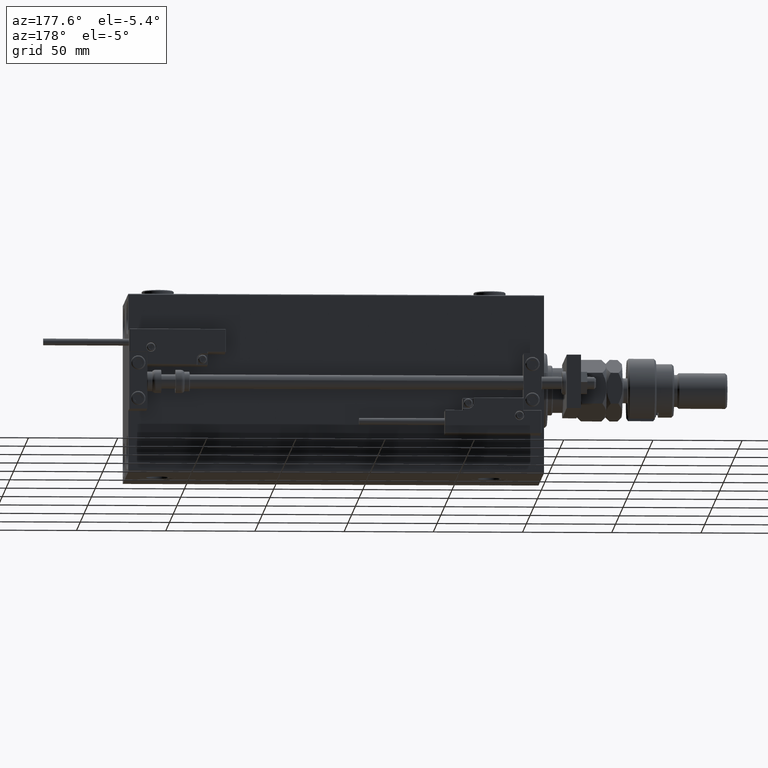
[diagram: clean part render]
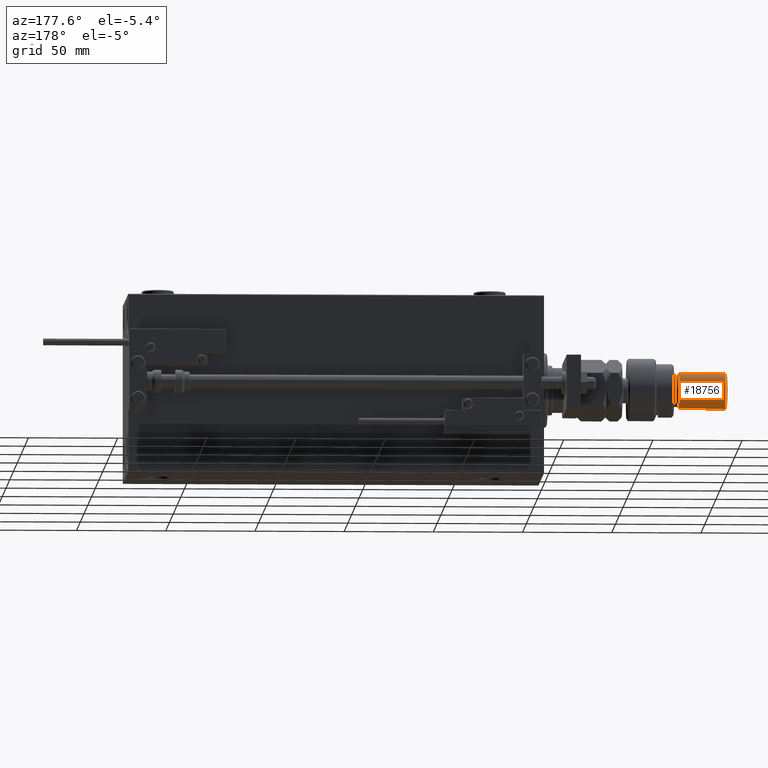
[diagram: same view with one face highlighted and labeled with its STEP entity id]
A machine part, auxiliary view. The second image highlights one B-rep face of the part: STEP entity #18756.
In plain terms, the highlighted cylindrical surface (edge-blend (fillet) strip) has radius 10 mm, axis along (1, -0, -0).
Its self-contained STEP definition (entity closure, byte-faithful):
#1841 = DIRECTION ( 'NONE',  ( -1.000000000000000000, 0.000000000000000000, 0.000000000000000000 ) ) ;
#1987 = EDGE_CURVE ( 'NONE', #40894, #2177, #6986, .T. ) ;
#2144 = DIRECTION ( 'NONE',  ( -0.000000000000000000, -0.000000000000000000, 1.000000000000000000 ) ) ;
#2177 = VERTEX_POINT ( 'NONE', #2226 ) ;
#2226 = CARTESIAN_POINT ( 'NONE',  ( 10.00000000000000000, 1.224646799147353256E-15, 29.00000000000000711 ) ) ;
#2314 = CARTESIAN_POINT ( 'NONE',  ( 10.00000000000000000, 1.224646799147353256E-15, 54.99999999999998579 ) ) ;
#2602 = EDGE_CURVE ( 'NONE', #49285, #4937, #29437, .T. ) ;
#2855 = CARTESIAN_POINT ( 'NONE',  ( -10.00000000000000000, 0.000000000000000000, 54.99999999999998579 ) ) ;
#3923 = EDGE_CURVE ( 'NONE', #2177, #4937, #52288, .T. ) ;
#4937 = VERTEX_POINT ( 'NONE', #48382 ) ;
#5351 = DIRECTION ( 'NONE',  ( -0.000000000000000000, -0.000000000000000000, -1.000000000000000000 ) ) ;
#5384 = CARTESIAN_POINT ( 'NONE',  ( 0.000000000000000000, 0.000000000000000000, 54.99999999999998579 ) ) ;
#6986 = LINE ( 'NONE', #27945, #13478 ) ;
#7143 = CIRCLE ( 'NONE', #37941, 10.00000000000000000 ) ;
#7538 = DIRECTION ( 'NONE',  ( -0.000000000000000000, -0.000000000000000000, -1.000000000000000000 ) ) ;
#8566 = DIRECTION ( 'NONE',  ( -0.000000000000000000, -0.000000000000000000, -1.000000000000000000 ) ) ;
#11407 = EDGE_LOOP ( 'NONE', ( #49603, #32817, #34704, #35974 ) ) ;
#13478 = VECTOR ( 'NONE', #7538, 1000.000000000000000 ) ;
#15309 = VECTOR ( 'NONE', #5351, 1000.000000000000000 ) ;
#18756 = ADVANCED_FACE ( 'NONE', ( #44014 ), #39335, .T. ) ;
#19347 = AXIS2_PLACEMENT_3D ( 'NONE', #21254, #8566, #1841 ) ;
#21254 = CARTESIAN_POINT ( 'NONE',  ( 0.000000000000000000, 0.000000000000000000, 56.00000000000000711 ) ) ;
#24159 = AXIS2_PLACEMENT_3D ( 'NONE', #39911, #2144, #51763 ) ;
#27161 = DIRECTION ( 'NONE',  ( 1.000000000000000000, 0.000000000000000000, 0.000000000000000000 ) ) ;
#27945 = CARTESIAN_POINT ( 'NONE',  ( 10.00000000000000000, 1.224646799147353256E-15, 56.00000000000000711 ) ) ;
#29437 = LINE ( 'NONE', #45951, #15309 ) ;
#32817 = ORIENTED_EDGE ( 'NONE', *, *, #1987, .T. ) ;
#34704 = ORIENTED_EDGE ( 'NONE', *, *, #3923, .T. ) ;
#35974 = ORIENTED_EDGE ( 'NONE', *, *, #2602, .F. ) ;
#37941 = AXIS2_PLACEMENT_3D ( 'NONE', #5384, #48359, #27161 ) ;
#39335 = CYLINDRICAL_SURFACE ( 'NONE', #19347, 10.00000000000000000 ) ;
#39911 = CARTESIAN_POINT ( 'NONE',  ( 0.000000000000000000, 0.000000000000000000, 29.00000000000000711 ) ) ;
#40894 = VERTEX_POINT ( 'NONE', #2314 ) ;
#44014 = FACE_OUTER_BOUND ( 'NONE', #11407, .T. ) ;
#45951 = CARTESIAN_POINT ( 'NONE',  ( -10.00000000000000000, 0.000000000000000000, 56.00000000000000711 ) ) ;
#48359 = DIRECTION ( 'NONE',  ( 0.000000000000000000, 0.000000000000000000, -1.000000000000000000 ) ) ;
#48382 = CARTESIAN_POINT ( 'NONE',  ( -10.00000000000000000, 0.000000000000000000, 29.00000000000000711 ) ) ;
#49285 = VERTEX_POINT ( 'NONE', #2855 ) ;
#49603 = ORIENTED_EDGE ( 'NONE', *, *, #54263, .T. ) ;
#51763 = DIRECTION ( 'NONE',  ( 1.000000000000000000, 0.000000000000000000, 0.000000000000000000 ) ) ;
#52288 = CIRCLE ( 'NONE', #24159, 10.00000000000000000 ) ;
#54263 = EDGE_CURVE ( 'NONE', #49285, #40894, #7143, .T. ) ;